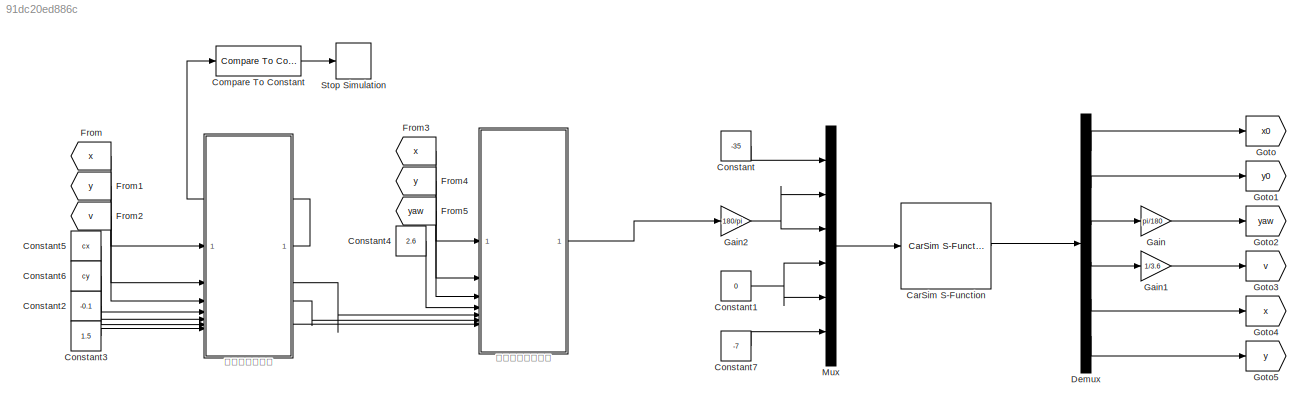
MODEL slx_91dc20ed886c
KIND model
CONFIG AbsTol = auto
CONFIG EnableMultiTasking = off
CONFIG FixedStep = auto
CONFIG MaxStep = auto
CONFIG MinStep = auto
CONFIG RelTol = 1e-3
CONFIG SampleTimeConstraint = Unconstrained
CONFIG SolverName = VariableStepAuto
CONFIG StartTime = 0.0
CONFIG StopTime = 60
BLOCK [Reference] CarSim S-Function  REF=Solver_SF/CarSim S-Function
  Priority = 1
  SourceBlock = Solver_SF/CarSim S-Function
  SourceProductName = CarSim S-Function
  SourceType = Vehicle math model library
BLOCK [Reference] Compare To Constant  REF=simulink/Logic and Bit
Operations/Compare
To Constant
  SourceBlock = simulink/Logic and Bit\nOperations/Compare\nTo Constant
  SourceType = Compare To Constant
BLOCK [Constant] Constant
  Value = -35
BLOCK [Constant] Constant1
  Value = 0
BLOCK [Constant] Constant2
  Value = -0.1
BLOCK [Constant] Constant3
  Value = 1.5
BLOCK [Constant] Constant4
  Value = 2.6
BLOCK [Constant] Constant5
  Value = cx
BLOCK [Constant] Constant6
  Value = cy
BLOCK [Constant] Constant7
  Value = -7
BLOCK [Demux] Demux
  Outputs = 6
BLOCK [From] From
  GotoTag = x
BLOCK [From] From1
  GotoTag = y
BLOCK [From] From2
  GotoTag = v
BLOCK [From] From3
  GotoTag = x
BLOCK [From] From4
  GotoTag = y
BLOCK [From] From5
  GotoTag = yaw
BLOCK [Gain] Gain
  Gain = pi/180
BLOCK [Gain] Gain1
  Gain = 1/3.6
BLOCK [Gain] Gain2
  Gain = 180/pi
BLOCK [Goto] Goto
  GotoTag = x0
BLOCK [Goto] Goto1
  GotoTag = y0
BLOCK [Goto] Goto2
  GotoTag = yaw
BLOCK [Goto] Goto3
  GotoTag = v
BLOCK [Goto] Goto4
  GotoTag = x
BLOCK [Goto] Goto5
  GotoTag = y
BLOCK [Mux] Mux
  DisplayOption = bar
  Inputs = 6
BLOCK [Stop] Stop Simulation
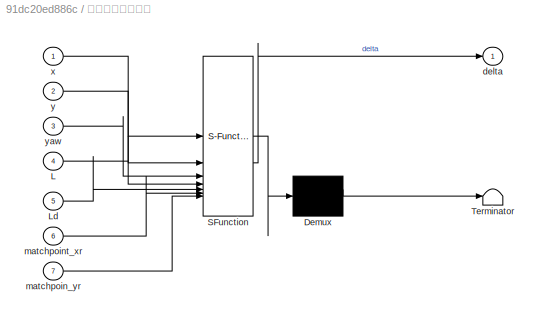
BLOCK [SubSystem] 计算前轮转角输入
  ErrorFcn = Stateflow.Translate.translate
  LibrarySourceBlock = simulink/User-Defined\nFunctions/MATLAB Function
  PermitHierarchicalResolution = ExplicitOnly
  SFBlockType = MATLAB Function
  TreatAsAtomicUnit = on
BLOCK [Demux] 计算前轮转角输入/ Demux 
  Outputs = 1
BLOCK [S-Function] 计算前轮转角输入/ SFunction 
  EnableBusSupport = on
  FunctionName = sf_sfun
  PortCounts = [7 2]
  SFcnIsStateOwnerBlock = off
  SFunctionDeploymentMode = off
  Tag = Stateflow S-Function 1
BLOCK [Terminator] 计算前轮转角输入/ Terminator 
BLOCK [Inport] 计算前轮转角输入/L
  Port = 4
BLOCK [Inport] 计算前轮转角输入/Ld
  Port = 5
BLOCK [Outport] 计算前轮转角输入/delta
BLOCK [Inport] 计算前轮转角输入/matchpoin_yr
  Port = 7
BLOCK [Inport] 计算前轮转角输入/matchpoint_xr
  Port = 6
BLOCK [Inport] 计算前轮转角输入/x
BLOCK [Inport] 计算前轮转角输入/y
  Port = 2
BLOCK [Inport] 计算前轮转角输入/yaw
  Port = 3
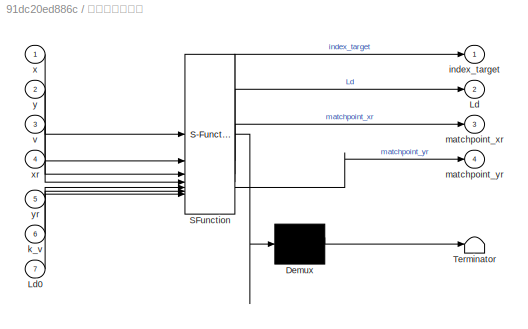
BLOCK [SubSystem] 计算最近规划点
  ErrorFcn = Stateflow.Translate.translate
  LibrarySourceBlock = simulink/User-Defined\nFunctions/MATLAB Function
  PermitHierarchicalResolution = ExplicitOnly
  SFBlockType = MATLAB Function
  TreatAsAtomicUnit = on
BLOCK [Demux] 计算最近规划点/ Demux 
  Outputs = 1
BLOCK [S-Function] 计算最近规划点/ SFunction 
  EnableBusSupport = on
  FunctionName = sf_sfun
  PortCounts = [7 5]
  SFcnIsStateOwnerBlock = off
  SFunctionDeploymentMode = off
  Tag = Stateflow S-Function 2
BLOCK [Terminator] 计算最近规划点/ Terminator 
BLOCK [Outport] 计算最近规划点/Ld
  Port = 2
BLOCK [Inport] 计算最近规划点/Ld0
  Port = 7
BLOCK [Outport] 计算最近规划点/index_target
BLOCK [Inport] 计算最近规划点/k_v
  Port = 6
BLOCK [Outport] 计算最近规划点/matchpoint_xr
  Port = 3
BLOCK [Outport] 计算最近规划点/matchpoint_yr
  Port = 4
BLOCK [Inport] 计算最近规划点/v
  Port = 3
BLOCK [Inport] 计算最近规划点/x
BLOCK [Inport] 计算最近规划点/xr
  Port = 4
BLOCK [Inport] 计算最近规划点/y
  Port = 2
BLOCK [Inport] 计算最近规划点/yr
  Port = 5
LINE CarSim S-Function:1 -> Demux:1
LINE Compare To Constant:1 -> Stop Simulation:1
NET Constant1:1 -> Mux:4, Mux:5
LINE Constant2:1 -> 计算最近规划点:6
LINE Constant3:1 -> 计算最近规划点:7
LINE Constant4:1 -> 计算前轮转角输入:4
LINE Constant5:1 -> 计算最近规划点:4
LINE Constant6:1 -> 计算最近规划点:5
LINE Constant7:1 -> Mux:6
LINE Constant:1 -> Mux:1
LINE Demux:1 -> Goto:1
LINE Demux:2 -> Goto1:1
LINE Demux:3 -> Gain:1
LINE Demux:4 -> Gain1:1
LINE Demux:5 -> Goto4:1
LINE Demux:6 -> Goto5:1
LINE From1:1 -> 计算最近规划点:2
LINE From2:1 -> 计算最近规划点:3
LINE From3:1 -> 计算前轮转角输入:1
LINE From4:1 -> 计算前轮转角输入:2
LINE From5:1 -> 计算前轮转角输入:3
LINE From:1 -> 计算最近规划点:1
LINE Gain1:1 -> Goto3:1
NET Gain2:1 -> Mux:2, Mux:3
LINE Gain:1 -> Goto2:1
LINE Mux:1 -> CarSim S-Function:1
LINE 计算前轮转角输入:1 -> Gain2:1
LINE 计算最近规划点:1 -> Compare To Constant:1
LINE 计算最近规划点:2 -> 计算前轮转角输入:5
LINE 计算最近规划点:3 -> 计算前轮转角输入:6
LINE 计算最近规划点:4 -> 计算前轮转角输入:7
note: NET lines group one-source signal fan-out (src -> all destinations, sorted); 1:1 wires keep LINE
CHART 计算前轮转角输入 states=1 transitions=1
  STATE_LABEL 'eML_blk_kernel()'
  STATE_LABEL 'SCRIPT:\nfunction delta = control(x,y,yaw,L,Ld,matchpoint_xr,matchpoin_yr)\n    %计算车轴与匹配点连线之间的夹角alpha\n    alpha = atan2((matchpoin_yr - y), (matchpoint_xr - x)) - yaw;\n    %计算前轮转角\n    delta = atan2(2*L*sin(alpha), Ld);\n    %限制前轮转角大小\n%     if delta < -pi/3\n%         delta = -pi/3;\n%     elseif delta > pi/3\n%         delta = pi/3;\n%     end\n    if delta < -pi/3\n        delta = -pi/3;\n    end\n    if de...<+45ch>'
CHART 计算最近规划点 states=1 transitions=1
  STATE_LABEL 'eML_blk_kernel()'
  STATE_LABEL 'SCRIPT:\nfunction [index_target, Ld, matchpoint_xr, matchpoint_yr] = find_matchpoint(x,y,v,xr,yr,k_v,Ld0)\n    total_point = length(xr);\n    index_min = 0;\n    distance_min = (xr(1) - x)^2 + (yr(1) -y)^2;\n    for i=1:total_point\n        distance = (xr(i) - x)^2 + (yr(i) -y)^2;    %这里不用加根号函数，因为只是找最近的点，平方也无所谓\n        if distance < distance_min\n            distance_min = distance;\n            index_min...<+497ch>'
CHART  states=0 transitions=0
CHART  states=0 transitions=0
